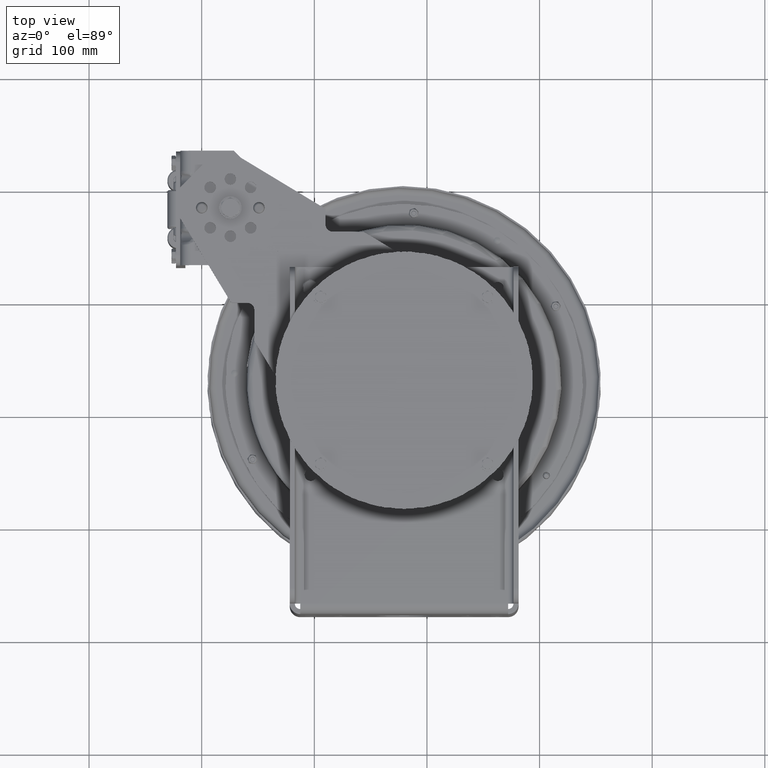
[diagram: clean part render]
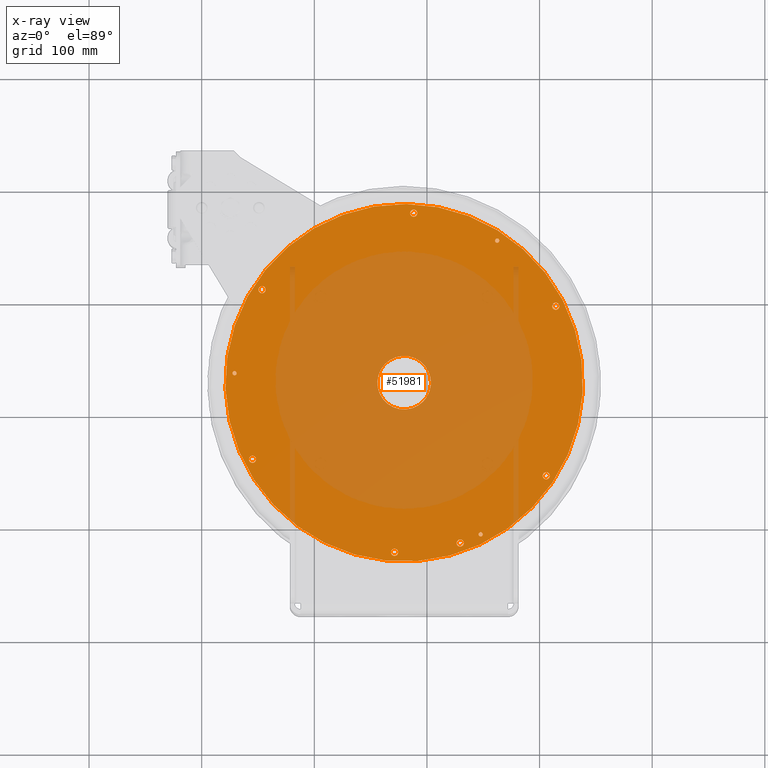
[diagram: x-ray — body ghosted, one internal face saturated and labeled with its STEP entity id]
A machine part, top view, then the same camera in x-ray: the body is ghosted and one INTERNAL B-rep face — a face not visible from any outside direction — is saturated and labeled: STEP entity #51981.
In plain terms, the highlighted planar face has unit normal (-0, -0, -1).
Its self-contained STEP definition (entity closure, byte-faithful):
#3569=FACE_BOUND('',#12369,.T.);
#3570=FACE_BOUND('',#12370,.T.);
#3571=FACE_BOUND('',#12371,.T.);
#3572=FACE_BOUND('',#12372,.T.);
#3573=FACE_BOUND('',#12373,.T.);
#3574=FACE_BOUND('',#12374,.T.);
#3575=FACE_BOUND('',#12375,.T.);
#3576=FACE_BOUND('',#12376,.T.);
#3577=FACE_BOUND('',#12377,.T.);
#3578=FACE_BOUND('',#12378,.T.);
#3579=FACE_BOUND('',#12379,.T.);
#4905=PLANE('',#58097);
#8006=FACE_OUTER_BOUND('',#12368,.T.);
#12368=EDGE_LOOP('',(#44275));
#12369=EDGE_LOOP('',(#44276));
#12370=EDGE_LOOP('',(#44277));
#12371=EDGE_LOOP('',(#44278));
#12372=EDGE_LOOP('',(#44279));
#12373=EDGE_LOOP('',(#44280));
#12374=EDGE_LOOP('',(#44281));
#12375=EDGE_LOOP('',(#44282));
#12376=EDGE_LOOP('',(#44283));
#12377=EDGE_LOOP('',(#44284));
#12378=EDGE_LOOP('',(#44285));
#12379=EDGE_LOOP('',(#44286));
#20109=CIRCLE('',#58063,0.125);
#20111=CIRCLE('',#58066,0.073);
#20113=CIRCLE('',#58069,0.073);
#20115=CIRCLE('',#58072,0.073);
#20117=CIRCLE('',#58075,0.125);
#20119=CIRCLE('',#58078,0.125);
#20121=CIRCLE('',#58081,0.125);
#20123=CIRCLE('',#58084,0.125);
#20125=CIRCLE('',#58087,0.125);
#20127=CIRCLE('',#58090,0.125);
#20129=CIRCLE('',#58093,0.9375);
#20130=CIRCLE('',#58095,6.25);
#24608=VERTEX_POINT('',#98293);
#24610=VERTEX_POINT('',#98298);
#24612=VERTEX_POINT('',#98303);
#24614=VERTEX_POINT('',#98308);
#24616=VERTEX_POINT('',#98313);
#24618=VERTEX_POINT('',#98318);
#24620=VERTEX_POINT('',#98323);
#24622=VERTEX_POINT('',#98328);
#24624=VERTEX_POINT('',#98333);
#24626=VERTEX_POINT('',#98338);
#24628=VERTEX_POINT('',#98343);
#24629=VERTEX_POINT('',#98346);
#31198=EDGE_CURVE('',#24608,#24608,#20109,.T.);
#31200=EDGE_CURVE('',#24610,#24610,#20111,.T.);
#31202=EDGE_CURVE('',#24612,#24612,#20113,.T.);
#31204=EDGE_CURVE('',#24614,#24614,#20115,.T.);
#31206=EDGE_CURVE('',#24616,#24616,#20117,.T.);
#31208=EDGE_CURVE('',#24618,#24618,#20119,.T.);
#31210=EDGE_CURVE('',#24620,#24620,#20121,.T.);
#31212=EDGE_CURVE('',#24622,#24622,#20123,.T.);
#31214=EDGE_CURVE('',#24624,#24624,#20125,.T.);
#31216=EDGE_CURVE('',#24626,#24626,#20127,.T.);
#31218=EDGE_CURVE('',#24628,#24628,#20129,.T.);
#31219=EDGE_CURVE('',#24629,#24629,#20130,.T.);
#44275=ORIENTED_EDGE('',*,*,#31219,.F.);
#44276=ORIENTED_EDGE('',*,*,#31198,.T.);
#44277=ORIENTED_EDGE('',*,*,#31200,.T.);
#44278=ORIENTED_EDGE('',*,*,#31202,.T.);
#44279=ORIENTED_EDGE('',*,*,#31204,.T.);
#44280=ORIENTED_EDGE('',*,*,#31206,.T.);
#44281=ORIENTED_EDGE('',*,*,#31208,.T.);
#44282=ORIENTED_EDGE('',*,*,#31210,.T.);
#44283=ORIENTED_EDGE('',*,*,#31212,.T.);
#44284=ORIENTED_EDGE('',*,*,#31214,.T.);
#44285=ORIENTED_EDGE('',*,*,#31216,.T.);
#44286=ORIENTED_EDGE('',*,*,#31218,.T.);
#51981=ADVANCED_FACE('',(#8006,#3569,#3570,#3571,#3572,#3573,#3574,#3575,
#3576,#3577,#3578,#3579),#4905,.F.);
#58063=AXIS2_PLACEMENT_3D('',#98294,#72320,#72321);
#58066=AXIS2_PLACEMENT_3D('',#98299,#72326,#72327);
#58069=AXIS2_PLACEMENT_3D('',#98304,#72332,#72333);
#58072=AXIS2_PLACEMENT_3D('',#98309,#72338,#72339);
#58075=AXIS2_PLACEMENT_3D('',#98314,#72344,#72345);
#58078=AXIS2_PLACEMENT_3D('',#98319,#72350,#72351);
#58081=AXIS2_PLACEMENT_3D('',#98324,#72356,#72357);
#58084=AXIS2_PLACEMENT_3D('',#98329,#72362,#72363);
#58087=AXIS2_PLACEMENT_3D('',#98334,#72368,#72369);
#58090=AXIS2_PLACEMENT_3D('',#98339,#72374,#72375);
#58093=AXIS2_PLACEMENT_3D('',#98344,#72380,#72381);
#58095=AXIS2_PLACEMENT_3D('',#98347,#72384,#72385);
#58097=AXIS2_PLACEMENT_3D('',#98350,#72388,#72389);
#72320=DIRECTION('center_axis',(-7.8306332726668E-16,-2.69070720057062E-14,
-1.));
#72321=DIRECTION('ref_axis',(0.998419308331574,-0.0562039567174947,7.30458364813805E-16));
#72326=DIRECTION('center_axis',(-7.8306332726668E-16,-2.69070720057062E-14,
-1.));
#72327=DIRECTION('ref_axis',(-0.547883708476339,-0.836554506285283,2.29382599770308E-14));
#72332=DIRECTION('center_axis',(-7.8306332726668E-16,-2.69070720057062E-14,
-1.));
#72333=DIRECTION('ref_axis',(-0.450535599855235,0.892758463002779,-2.36687183418446E-14));
#72338=DIRECTION('center_axis',(-7.8306332726668E-16,-2.69070720057062E-14,
-1.));
#72339=DIRECTION('ref_axis',(0.998419308331574,-0.0562039567174947,7.30458364813804E-16));
#72344=DIRECTION('center_axis',(-7.8306332726668E-16,-2.69070720057062E-14,
-1.));
#72345=DIRECTION('ref_axis',(0.450535599855235,-0.892758463002779,2.36687183418446E-14));
#72350=DIRECTION('center_axis',(-7.8306332726668E-16,-2.69070720057062E-14,
-1.));
#72351=DIRECTION('ref_axis',(-0.547883708476339,-0.836554506285283,2.29382599770308E-14));
#72356=DIRECTION('center_axis',(-7.8306332726668E-16,-2.69070720057062E-14,
-1.));
#72357=DIRECTION('ref_axis',(-0.998419308331574,0.0562039567174949,-7.30458364813809E-16));
#72362=DIRECTION('center_axis',(-7.8306332726668E-16,-2.69070720057062E-14,
-1.));
#72363=DIRECTION('ref_axis',(-0.450535599855235,0.892758463002779,-2.36687183418446E-14));
#72368=DIRECTION('center_axis',(-7.8306332726668E-16,-2.69070720057062E-14,
-1.));
#72369=DIRECTION('ref_axis',(0.547883708476338,0.836554506285284,-2.29382599770308E-14));
#72374=DIRECTION('center_axis',(-7.8306332726668E-16,-2.69070720057062E-14,
-1.));
#72375=DIRECTION('ref_axis',(0.998419308331574,-0.0562039567174947,7.30458364813805E-16));
#72380=DIRECTION('center_axis',(-7.8306332726668E-16,-2.69070720057062E-14,
-1.));
#72381=DIRECTION('ref_axis',(0.998419308331574,-0.0562039567174947,7.30458364813804E-16));
#72384=DIRECTION('center_axis',(-7.8306332726668E-16,-2.69070720057062E-14,
-1.));
#72385=DIRECTION('ref_axis',(-0.998419308331574,0.0562039567174947,-7.30458364813805E-16));
#72388=DIRECTION('center_axis',(-7.8306332726668E-16,-2.69070720057062E-14,
-1.));
#72389=DIRECTION('ref_axis',(-0.998419308331574,0.0562039567174937,0.));
#98293=CARTESIAN_POINT('',(1.28857350328577,-12.411564126958,-10.8116580459973));
#98294=CARTESIAN_POINT('Origin',(1.16377108974432,-12.4045386323683,-10.8116580459973));
#98298=CARTESIAN_POINT('',(2.41655259519918,-1.89399527678495,-10.8116580459975));
#98299=CARTESIAN_POINT('Origin',(2.45654810591796,-1.83292679782612,-10.8116580459975));
#98303=CARTESIAN_POINT('',(1.84565461219072,-12.0355511851748,-10.8116580459973));
#98304=CARTESIAN_POINT('Origin',(1.87854371098016,-12.100722552974,-10.8116580459973));
#98308=CARTESIAN_POINT('',(-6.65174144687082,-6.47036107472525,-10.8116580459974));
#98309=CARTESIAN_POINT('Origin',(-6.72462605637902,-6.46625818588487,-10.8116580459974));
#98313=CARTESIAN_POINT('',(4.5605589109006,-4.23650886262989,-10.8116580459975));
#98314=CARTESIAN_POINT('Origin',(4.5042419609187,-4.12491405475454,-10.8116580459975));
#98318=CARTESIAN_POINT('',(4.10204550434902,-10.1575980112589,-10.8116580459973));
#98319=CARTESIAN_POINT('Origin',(4.17053096790857,-10.0530286979733,-10.8116580459973));
#98323=CARTESIAN_POINT('',(-1.25502481971188,-12.721058327524,-10.8116580459972));
#98324=CARTESIAN_POINT('Origin',(-1.13022240617043,-12.7280838221137,-10.8116580459972));
#98328=CARTESIAN_POINT('',(-6.15358173722121,-9.3634294951601,-10.8116580459973));
#98329=CARTESIAN_POINT('Origin',(-6.0972647872393,-9.47502430303545,-10.8116580459973));
#98333=CARTESIAN_POINT('',(-5.69506833066963,-3.44234034653107,-10.8116580459975));
#98334=CARTESIAN_POINT('Origin',(-5.76355379422917,-3.54690965981673,-10.8116580459975));
#98338=CARTESIAN_POINT('',(-0.337998006608732,-0.878880030265962,-10.8116580459976));
#98339=CARTESIAN_POINT('Origin',(-0.462800420150178,-0.871854535676275,
-10.8116580459976));
#98343=CARTESIAN_POINT('',(0.139506688400547,-6.85266038831764,-10.8116580459974));
#98344=CARTESIAN_POINT('Origin',(-0.796511413160303,-6.79996917889499,-10.8116580459974));
#98346=CARTESIAN_POINT('',(5.44360926391203,-7.15124390837934,-10.8116580459974));
#98347=CARTESIAN_POINT('Origin',(-0.796511413160303,-6.79996917889499,-10.8116580459974));
#98350=CARTESIAN_POINT('Origin',(-0.796511413160303,-6.79996917889499,-10.8116580459974));